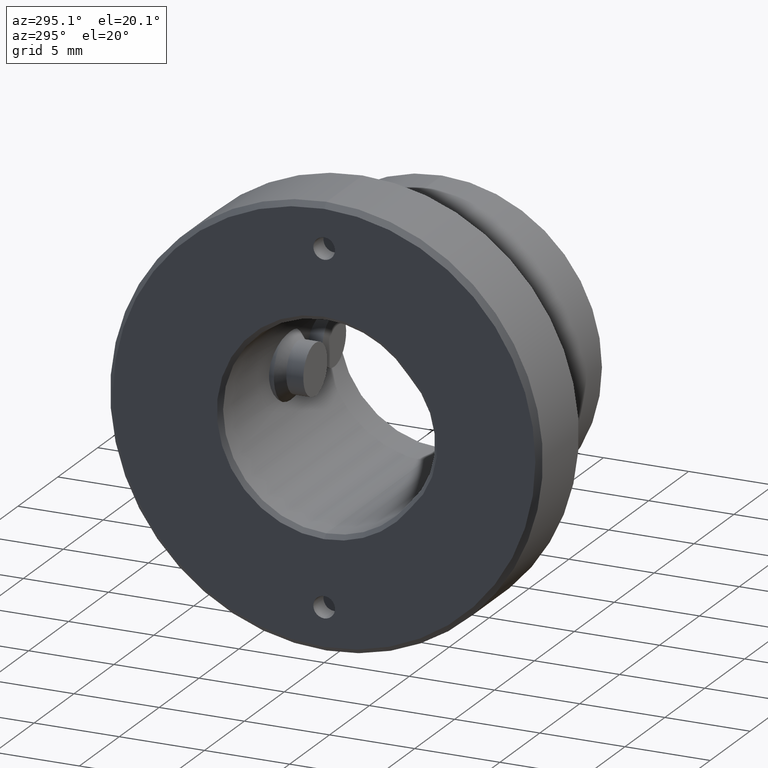
[diagram: clean part render]
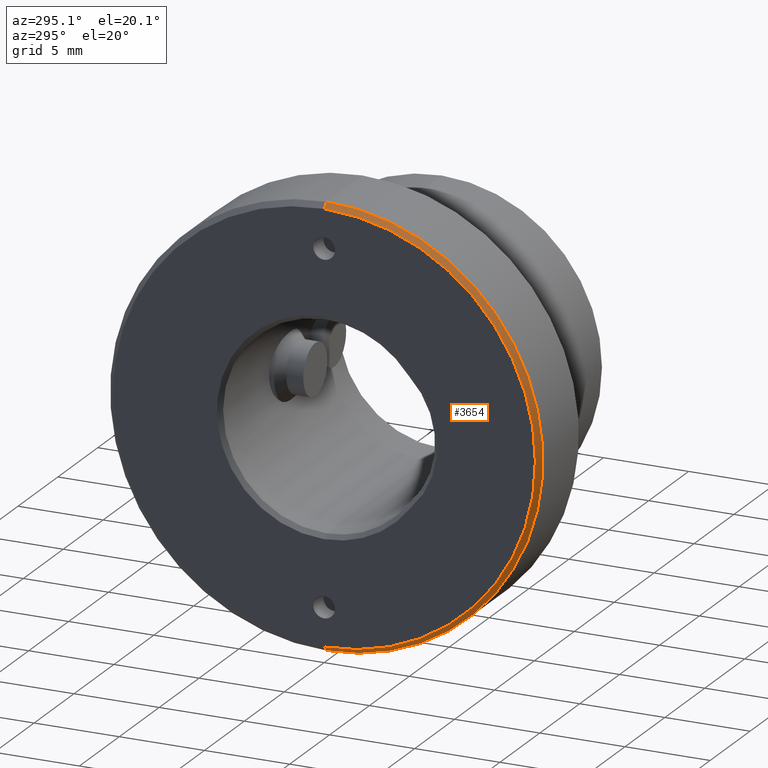
[diagram: same view with one face highlighted and labeled with its STEP entity id]
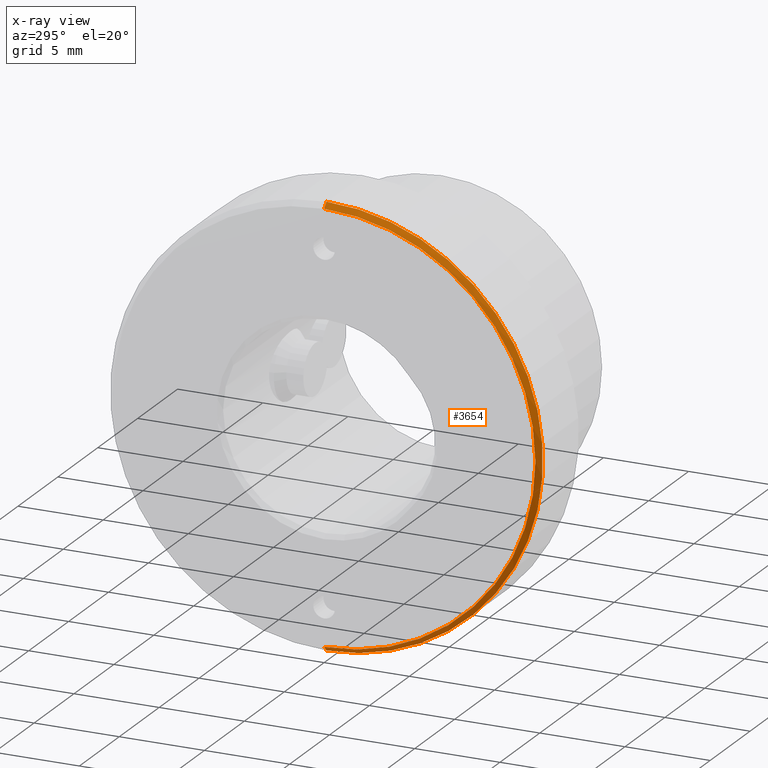
[diagram: x-ray of the same camera — body ghosted, the highlighted face saturated]
A machine part, auxiliary view. The second image highlights one B-rep face of the part: STEP entity #3654.
The next image is the same camera in x-ray: the body ghosted, the highlighted face saturated — about 0% of this face is hidden behind the body in this view.
In plain terms, the highlighted conical surface has half-angle 45 deg.
Its self-contained STEP definition (entity closure, byte-faithful):
#49 = VECTOR ( 'NONE', #3252, 1000.000000000000114 ) ;
#94 = VERTEX_POINT ( 'NONE', #4269 ) ;
#444 = AXIS2_PLACEMENT_3D ( 'NONE', #2320, #2873, #4040 ) ;
#465 = EDGE_LOOP ( 'NONE', ( #2693, #4596, #3522, #1806 ) ) ;
#498 = CARTESIAN_POINT ( 'NONE',  ( 0.2999999999999964362, 1.555301434917138433E-15, 12.69999999999999929 ) ) ;
#887 = DIRECTION ( 'NONE',  ( 0.000000000000000000, 0.000000000000000000, -1.000000000000000000 ) ) ;
#906 = EDGE_CURVE ( 'NONE', #1550, #94, #2092, .T. ) ;
#1272 = LINE ( 'NONE', #498, #49 ) ;
#1297 = CARTESIAN_POINT ( 'NONE',  ( 0.2999999999999964362, 0.000000000000000000, 0.000000000000000000 ) ) ;
#1375 = CARTESIAN_POINT ( 'NONE',  ( 0.000000000000000000, 0.000000000000000000, 0.000000000000000000 ) ) ;
#1550 = VERTEX_POINT ( 'NONE', #2101 ) ;
#1593 = CIRCLE ( 'NONE', #444, 12.69999999999999929 ) ;
#1677 = CARTESIAN_POINT ( 'NONE',  ( 0.2999999999999964362, 0.000000000000000000, 12.69999999999999929 ) ) ;
#1703 = EDGE_CURVE ( 'NONE', #94, #1710, #1272, .T. ) ;
#1704 = DIRECTION ( 'NONE',  ( 0.7071067811865455743, 0.000000000000000000, -0.7071067811865495711 ) ) ;
#1710 = VERTEX_POINT ( 'NONE', #1677 ) ;
#1806 = ORIENTED_EDGE ( 'NONE', *, *, #2509, .F. ) ;
#1960 = CARTESIAN_POINT ( 'NONE',  ( 0.2999999999999964362, 1.555301434917138433E-15, -12.69999999999999929 ) ) ;
#1966 = LINE ( 'NONE', #2490, #3778 ) ;
#2092 = CIRCLE ( 'NONE', #2499, 12.40000000000000213 ) ;
#2101 = CARTESIAN_POINT ( 'NONE',  ( 0.000000000000000000, 0.000000000000000000, -12.40000000000000213 ) ) ;
#2320 = CARTESIAN_POINT ( 'NONE',  ( 0.2999999999999964362, 0.000000000000000000, 0.000000000000000000 ) ) ;
#2412 = DIRECTION ( 'NONE',  ( 1.000000000000000000, -0.000000000000000000, -0.000000000000000000 ) ) ;
#2464 = EDGE_CURVE ( 'NONE', #1550, #3544, #1966, .T. ) ;
#2490 = CARTESIAN_POINT ( 'NONE',  ( 0.2999999999999964362, 0.000000000000000000, -12.69999999999999929 ) ) ;
#2499 = AXIS2_PLACEMENT_3D ( 'NONE', #1375, #4016, #4821 ) ;
#2509 = EDGE_CURVE ( 'NONE', #1710, #3544, #1593, .T. ) ;
#2663 = AXIS2_PLACEMENT_3D ( 'NONE', #1297, #2412, #887 ) ;
#2693 = ORIENTED_EDGE ( 'NONE', *, *, #1703, .F. ) ;
#2873 = DIRECTION ( 'NONE',  ( 1.000000000000000000, -0.000000000000000000, -0.000000000000000000 ) ) ;
#3252 = DIRECTION ( 'NONE',  ( 0.7071067811865455743, 8.659560562354957510E-17, 0.7071067811865495711 ) ) ;
#3522 = ORIENTED_EDGE ( 'NONE', *, *, #2464, .T. ) ;
#3544 = VERTEX_POINT ( 'NONE', #1960 ) ;
#3549 = CONICAL_SURFACE ( 'NONE', #2663, 12.69999999999999929, 0.7853981633974511656 ) ;
#3654 = ADVANCED_FACE ( 'NONE', ( #4816 ), #3549, .T. ) ;
#3778 = VECTOR ( 'NONE', #1704, 1000.000000000000114 ) ;
#4016 = DIRECTION ( 'NONE',  ( -1.000000000000000000, -0.000000000000000000, -0.000000000000000000 ) ) ;
#4040 = DIRECTION ( 'NONE',  ( 0.000000000000000000, 0.000000000000000000, -1.000000000000000000 ) ) ;
#4269 = CARTESIAN_POINT ( 'NONE',  ( 0.000000000000000000, 1.536931732929928397E-15, 12.40000000000000213 ) ) ;
#4596 = ORIENTED_EDGE ( 'NONE', *, *, #906, .F. ) ;
#4816 = FACE_OUTER_BOUND ( 'NONE', #465, .T. ) ;
#4821 = DIRECTION ( 'NONE',  ( 0.000000000000000000, 0.000000000000000000, -1.000000000000000000 ) ) ;